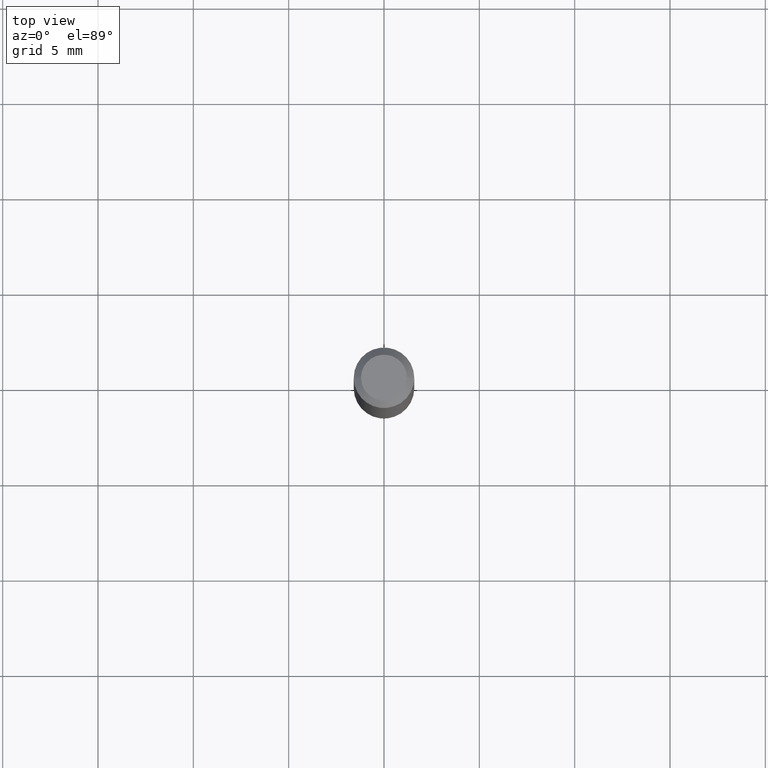
[diagram: clean part render]
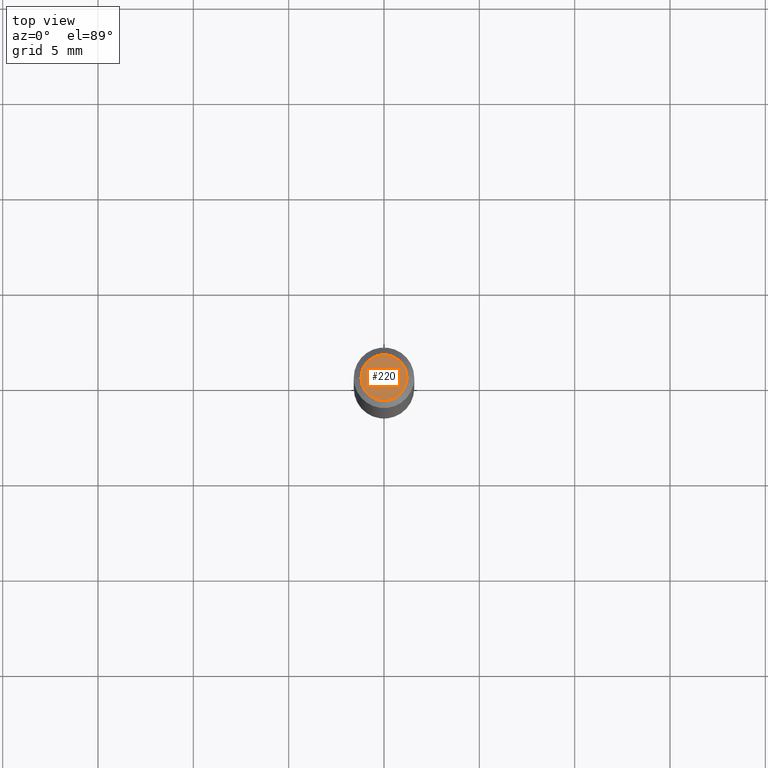
[diagram: same view with one face highlighted and labeled with its STEP entity id]
A machine part, top view. The second image highlights one B-rep face of the part: STEP entity #220.
In plain terms, the highlighted planar face has unit normal (0, -0, -1).
Its self-contained STEP definition (entity closure, byte-faithful):
#4 = DIRECTION ( 'NONE',  ( 1.000000000000000000, -6.982962677686267499E-15, 4.852736867747366768E-29 ) ) ;
#13 = FACE_OUTER_BOUND ( 'NONE', #164, .T. ) ;
#19 = PLANE ( 'NONE',  #305 ) ;
#20 = DIRECTION ( 'NONE',  ( -2.445468806185136597E-29, 3.491481338843145583E-15, 1.000000000000000000 ) ) ;
#56 = CIRCLE ( 'NONE', #326, 0.04749999999999999362 ) ;
#68 = CARTESIAN_POINT ( 'NONE',  ( -0.04749999999999999362, 3.578768372314216422E-16, 3.292288316969860333E-16 ) ) ;
#72 = EDGE_CURVE ( 'NONE', #124, #102, #184, .T. ) ;
#84 = DIRECTION ( 'NONE',  ( -1.000000000000000000, 6.982962677686265922E-15, -4.876176775795935793E-29 ) ) ;
#93 = AXIS2_PLACEMENT_3D ( 'NONE', #258, #136, #4 ) ;
#102 = VERTEX_POINT ( 'NONE', #401 ) ;
#124 = VERTEX_POINT ( 'NONE', #68 ) ;
#127 = ORIENTED_EDGE ( 'NONE', *, *, #72, .T. ) ;
#136 = DIRECTION ( 'NONE',  ( -2.445468806185136597E-29, 3.491481338843145583E-15, 1.000000000000000000 ) ) ;
#152 = DIRECTION ( 'NONE',  ( 1.000000000000000000, -6.982962677686267499E-15, 4.852736867747366768E-29 ) ) ;
#164 = EDGE_LOOP ( 'NONE', ( #127, #347 ) ) ;
#184 = CIRCLE ( 'NONE', #93, 0.04749999999999999362 ) ;
#220 = ADVANCED_FACE ( 'NONE', ( #13 ), #19, .F. ) ;
#227 = CARTESIAN_POINT ( 'NONE',  ( -8.051188380117617343E-45, 1.149496322079166104E-30, 3.292288316969884985E-16 ) ) ;
#258 = CARTESIAN_POINT ( 'NONE',  ( -8.051188380117617343E-45, 1.149496322079166104E-30, 3.292288316969884985E-16 ) ) ;
#300 = CARTESIAN_POINT ( 'NONE',  ( 3.316907271900976096E-16, 0.04749999999999999362, -1.230947746555162994E-18 ) ) ;
#305 = AXIS2_PLACEMENT_3D ( 'NONE', #300, #417, #84 ) ;
#326 = AXIS2_PLACEMENT_3D ( 'NONE', #227, #20, #152 ) ;
#347 = ORIENTED_EDGE ( 'NONE', *, *, #355, .T. ) ;
#355 = EDGE_CURVE ( 'NONE', #102, #124, #56, .T. ) ;
#401 = CARTESIAN_POINT ( 'NONE',  ( 0.04749999999999999362, -4.035134999187572707E-16, 3.292288316969910130E-16 ) ) ;
#417 = DIRECTION ( 'NONE',  ( 2.438088387897960049E-29, -3.491481338843145188E-15, -1.000000000000000000 ) ) ;